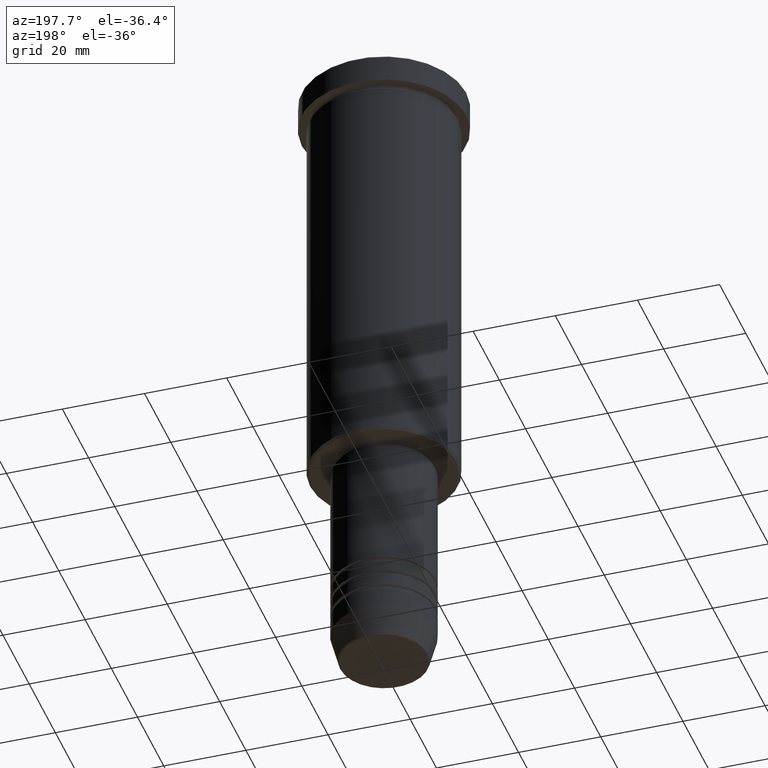
[diagram: clean part render]
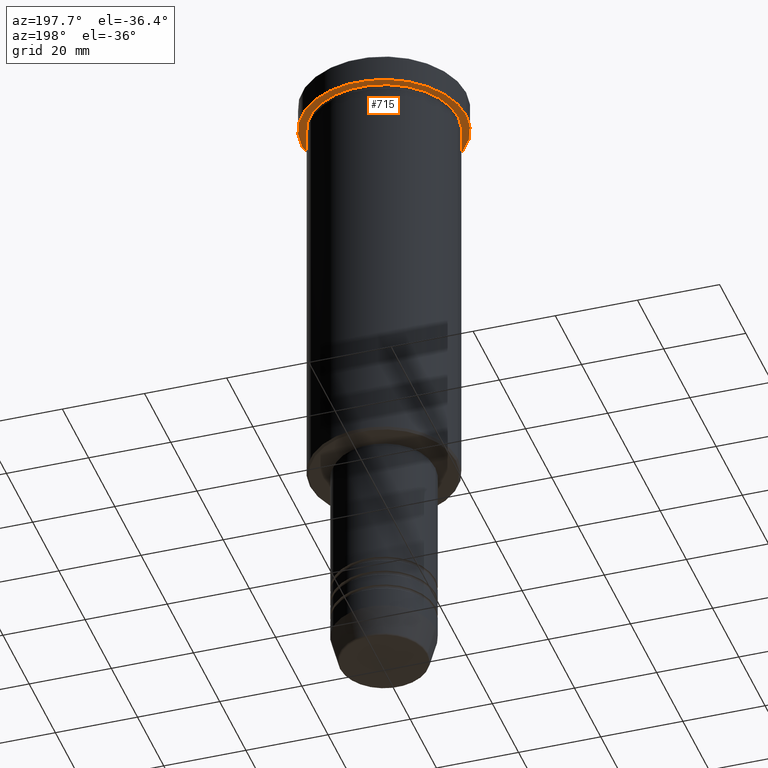
[diagram: same view with one face highlighted and labeled with its STEP entity id]
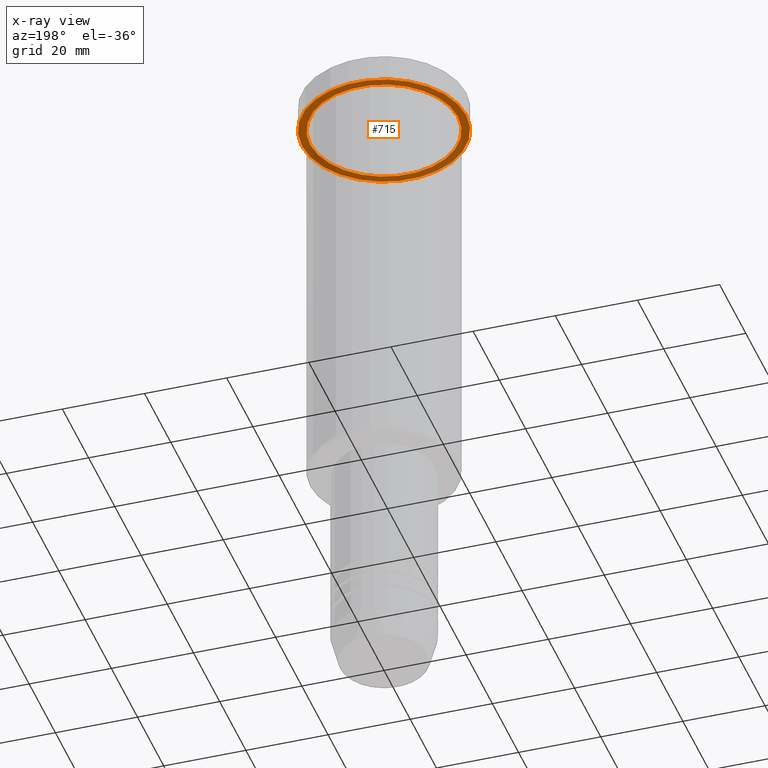
[diagram: x-ray of the same camera — body ghosted, the highlighted face saturated]
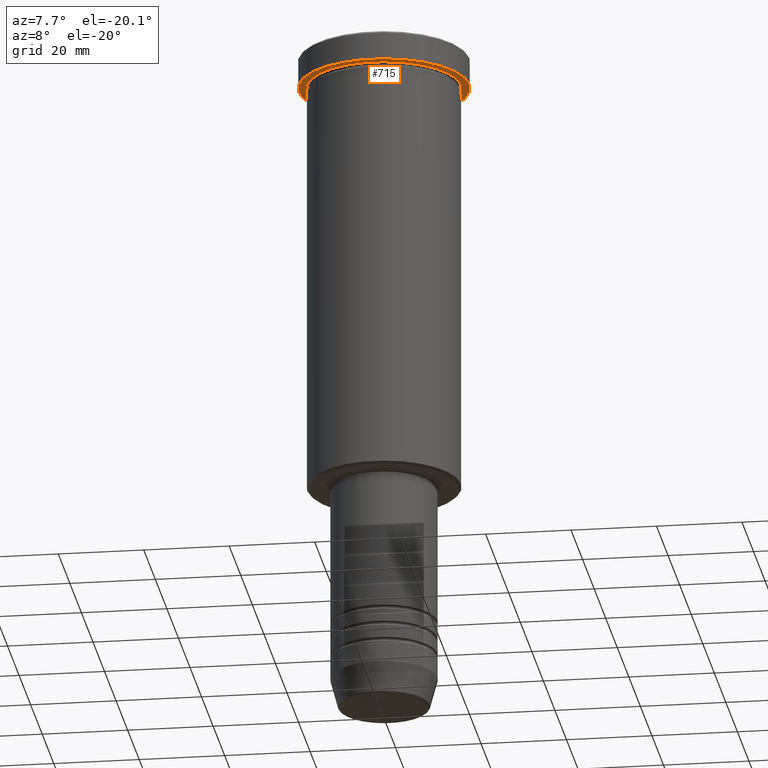
[diagram: same view with one face highlighted and labeled with its STEP entity id]
A machine part, auxiliary view. The second image highlights one B-rep face of the part: STEP entity #715.
The next image is the same camera in x-ray: the body ghosted, the highlighted face saturated — about 36% of this face is hidden behind the body in this view.
A second angle (auxiliary view) of the same face is appended — the face is thin or edge-on in the first view.
In plain terms, the highlighted planar face has unit normal (0, 0, -1).
Its self-contained STEP definition (entity closure, byte-faithful):
#3 = CIRCLE ( 'NONE', #151, 20.00000000000000000 ) ;
#5 = AXIS2_PLACEMENT_3D ( 'NONE', #430, #945, #588 ) ;
#51 = EDGE_LOOP ( 'NONE', ( #811, #440 ) ) ;
#94 = EDGE_CURVE ( 'NONE', #1138, #344, #660, .T. ) ;
#151 = AXIS2_PLACEMENT_3D ( 'NONE', #768, #656, #577 ) ;
#181 = CARTESIAN_POINT ( 'NONE',  ( 0.000000000000000000, 0.000000000000000000, -6.999999999999995559 ) ) ;
#189 = AXIS2_PLACEMENT_3D ( 'NONE', #181, #455, #729 ) ;
#310 = PLANE ( 'NONE',  #910 ) ;
#344 = VERTEX_POINT ( 'NONE', #541 ) ;
#363 = DIRECTION ( 'NONE',  ( -1.000000000000000000, 0.000000000000000000, 0.000000000000000000 ) ) ;
#391 = CARTESIAN_POINT ( 'NONE',  ( 0.000000000000000000, 20.00000000000000000, -6.999999999999995559 ) ) ;
#430 = CARTESIAN_POINT ( 'NONE',  ( 0.000000000000000000, 0.000000000000000000, -6.999999999999995559 ) ) ;
#433 = EDGE_CURVE ( 'NONE', #615, #1041, #3, .T. ) ;
#440 = ORIENTED_EDGE ( 'NONE', *, *, #433, .F. ) ;
#455 = DIRECTION ( 'NONE',  ( -0.000000000000000000, -0.000000000000000000, 1.000000000000000000 ) ) ;
#485 = DIRECTION ( 'NONE',  ( 0.000000000000000000, 0.000000000000000000, -1.000000000000000000 ) ) ;
#541 = CARTESIAN_POINT ( 'NONE',  ( 18.00000000000000000, 2.204364238465235428E-15, -6.999999999999995559 ) ) ;
#577 = DIRECTION ( 'NONE',  ( 1.000000000000000000, 0.000000000000000000, 0.000000000000000000 ) ) ;
#588 = DIRECTION ( 'NONE',  ( 1.000000000000000000, 0.000000000000000000, 0.000000000000000000 ) ) ;
#611 = EDGE_CURVE ( 'NONE', #344, #1138, #757, .T. ) ;
#615 = VERTEX_POINT ( 'NONE', #730 ) ;
#619 = CARTESIAN_POINT ( 'NONE',  ( 0.000000000000000000, 0.000000000000000000, -6.999999999999995559 ) ) ;
#638 = DIRECTION ( 'NONE',  ( -0.000000000000000000, -0.000000000000000000, 1.000000000000000000 ) ) ;
#656 = DIRECTION ( 'NONE',  ( -0.000000000000000000, -0.000000000000000000, 1.000000000000000000 ) ) ;
#660 = CIRCLE ( 'NONE', #189, 18.00000000000000000 ) ;
#676 = CARTESIAN_POINT ( 'NONE',  ( -18.00000000000000000, 0.000000000000000000, -6.999999999999995559 ) ) ;
#684 = CARTESIAN_POINT ( 'NONE',  ( 20.00000000000000000, 0.000000000000000000, -6.999999999999995559 ) ) ;
#708 = DIRECTION ( 'NONE',  ( -1.000000000000000000, 0.000000000000000000, -0.000000000000000000 ) ) ;
#715 = ADVANCED_FACE ( 'NONE', ( #1096, #1005 ), #310, .T. ) ;
#729 = DIRECTION ( 'NONE',  ( -1.000000000000000000, 0.000000000000000000, 0.000000000000000000 ) ) ;
#730 = CARTESIAN_POINT ( 'NONE',  ( -20.00000000000000000, 2.449293598294706513E-15, -6.999999999999995559 ) ) ;
#757 = CIRCLE ( 'NONE', #995, 18.00000000000000000 ) ;
#766 = EDGE_CURVE ( 'NONE', #1041, #615, #1026, .T. ) ;
#768 = CARTESIAN_POINT ( 'NONE',  ( 0.000000000000000000, 0.000000000000000000, -6.999999999999995559 ) ) ;
#794 = ORIENTED_EDGE ( 'NONE', *, *, #611, .T. ) ;
#811 = ORIENTED_EDGE ( 'NONE', *, *, #766, .F. ) ;
#910 = AXIS2_PLACEMENT_3D ( 'NONE', #391, #485, #708 ) ;
#945 = DIRECTION ( 'NONE',  ( -0.000000000000000000, -0.000000000000000000, 1.000000000000000000 ) ) ;
#961 = EDGE_LOOP ( 'NONE', ( #1001, #794 ) ) ;
#995 = AXIS2_PLACEMENT_3D ( 'NONE', #619, #638, #363 ) ;
#1001 = ORIENTED_EDGE ( 'NONE', *, *, #94, .T. ) ;
#1005 = FACE_OUTER_BOUND ( 'NONE', #51, .T. ) ;
#1026 = CIRCLE ( 'NONE', #5, 20.00000000000000000 ) ;
#1041 = VERTEX_POINT ( 'NONE', #684 ) ;
#1096 = FACE_BOUND ( 'NONE', #961, .T. ) ;
#1138 = VERTEX_POINT ( 'NONE', #676 ) ;